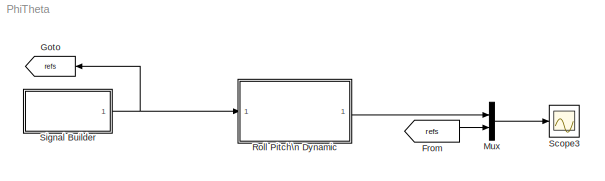
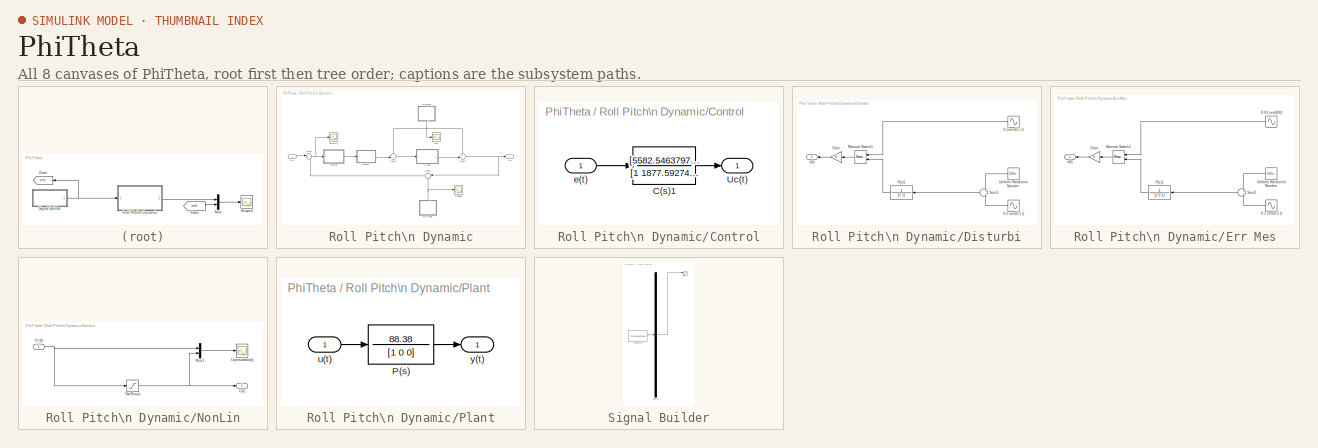
[diagram: thumbnail index - all 8 canvases of the model, root first then tree order]
MODEL PhiTheta
KIND model
BLOCK [From] From
  GotoTag = refs
  SID = 3
BLOCK [Goto] Goto
  GotoTag = refs
  SID = 4
BLOCK [Mux] Mux
  DisplayOption = bar
  Inputs = 2
  Ports = [2, 1]
  SID = 5
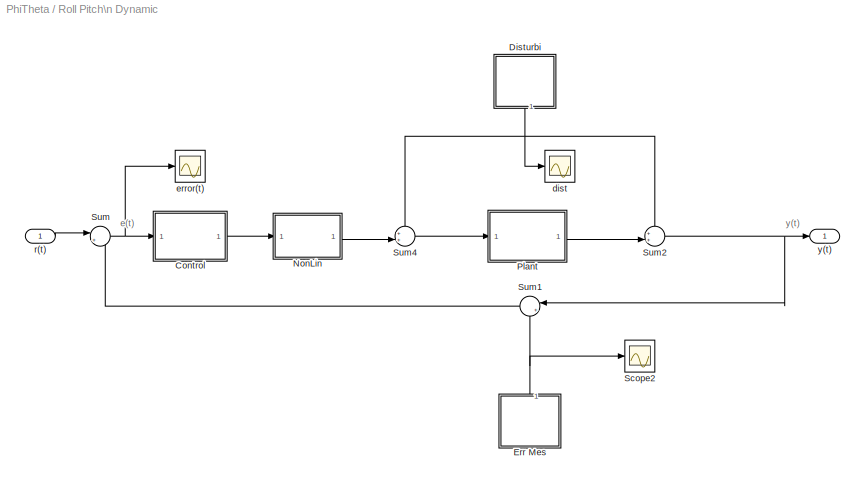
BLOCK [SubSystem] Roll Pitch\n Dynamic
  FunctionWithSeparateData = off
  MaskHideContents = off
  MinAlgLoopOccurrences = off
  Opaque = off
  Ports = [1, 1]
  PropExecContextOutsideSubsystem = off
  RTWSystemCode = Auto
  RequestExecContextInheritance = off
  SID = 58
BLOCK [SubSystem] Roll Pitch\n Dynamic/Control
  FunctionWithSeparateData = off
  MaskHideContents = off
  MinAlgLoopOccurrences = off
  Opaque = off
  Ports = [1, 1]
  PropExecContextOutsideSubsystem = off
  RTWSystemCode = Auto
  RequestExecContextInheritance = off
  SID = 52
BLOCK [TransferFcn] Roll Pitch\n Dynamic/Control/C(s)1
  Denominator = [1 1877.59274550691 0]
  Numerator = [5582.54637971166 77190.9890523944 0]
  SID = 23
BLOCK [Outport] Roll Pitch\n Dynamic/Control/Uc(t)
  IconDisplay = Port number
  SID = 54
BLOCK [Inport] Roll Pitch\n Dynamic/Control/e(t)
  IconDisplay = Port number
  SID = 53
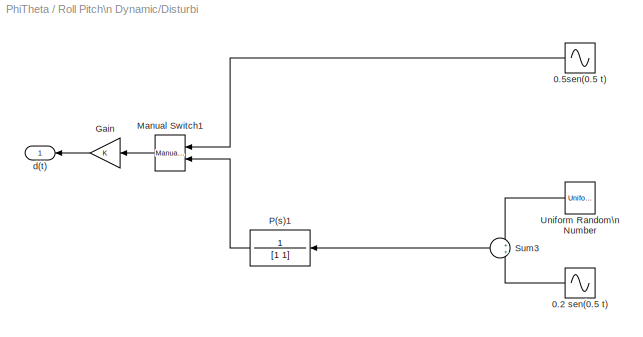
BLOCK [SubSystem] Roll Pitch\n Dynamic/Disturbi
  FunctionWithSeparateData = off
  MaskHideContents = off
  MinAlgLoopOccurrences = off
  Opaque = off
  Ports = [0, 1]
  PropExecContextOutsideSubsystem = off
  RTWSystemCode = Auto
  RequestExecContextInheritance = off
  SID = 43
BLOCK [Outport] Roll Pitch\n Dynamic/Disturbi/  d(t)
  IconDisplay = Port number
  SID = 44
BLOCK [Sin] Roll Pitch\n Dynamic/Disturbi/0.2 sen(0.5 t)
  Amplitude = 0.2
  Frequency = 0.4
  Phase = 1
  Ports = [0, 1]
  SID = 40
  SampleTime = 0
BLOCK [Sin] Roll Pitch\n Dynamic/Disturbi/0.5sen(0.5 t)
  Amplitude = 0.5
  Frequency = 0.5
  Phase = 1
  Ports = [0, 1]
  SID = 2
  SampleTime = 0
BLOCK [Gain] Roll Pitch\n Dynamic/Disturbi/Gain
  OutDataTypeStr = Inherit: Inherit via internal rule
  ParamDataTypeStr = Inherit: Inherit via internal rule
  SID = 61
  SaturateOnIntegerOverflow = off
BLOCK [Reference] Roll Pitch\n Dynamic/Disturbi/Manual Switch1  REF=simulink/Signal\nRouting/Manual Switch
  Ports = [2, 1]
  SID = 47
  SourceBlock = simulink/Signal\nRouting/Manual Switch
  SourceType = Manual Switch
  action = 0
  sw = 0
  varsize = off
BLOCK [TransferFcn] Roll Pitch\n Dynamic/Disturbi/P(s)1
  Denominator = [1 1]
  Numerator = 1
  SID = 38
BLOCK [Sum] Roll Pitch\n Dynamic/Disturbi/Sum3
  IconShape = round
  InputSameDT = off
  OutDataTypeStr = Inherit: Inherit via internal rule
  Ports = [2, 1]
  SID = 39
  SaturateOnIntegerOverflow = off
BLOCK [UniformRandomNumber] Roll Pitch\n Dynamic/Disturbi/Uniform Random\nNumber
  Maximum = 0.5
  Minimum = -0.5
  SID = 37
  SampleTime = 0.1
BLOCK [SubSystem] Roll Pitch\n Dynamic/Err Mes
  FunctionWithSeparateData = off
  MaskHideContents = off
  MinAlgLoopOccurrences = off
  Opaque = off
  Ports = [0, 1]
  PropExecContextOutsideSubsystem = off
  RTWSystemCode = Auto
  RequestExecContextInheritance = off
  SID = 62
BLOCK [Outport] Roll Pitch\n Dynamic/Err Mes/  d(t)
  IconDisplay = Port number
  SID = 70
BLOCK [Sin] Roll Pitch\n Dynamic/Err Mes/0.03 sen(80t)
  Amplitude = 0.003
  Frequency = 80
  Phase = 1
  Ports = [0, 1]
  SID = 19
  SampleTime = 0
BLOCK [Sin] Roll Pitch\n Dynamic/Err Mes/0.2 sen(0.5 t)
  Amplitude = 0.02
  Frequency = 50
  Phase = 1
  Ports = [0, 1]
  SID = 63
  SampleTime = 0
BLOCK [Gain] Roll Pitch\n Dynamic/Err Mes/Gain
  OutDataTypeStr = Inherit: Inherit via internal rule
  ParamDataTypeStr = Inherit: Inherit via internal rule
  SID = 65
  SaturateOnIntegerOverflow = off
BLOCK [Reference] Roll Pitch\n Dynamic/Err Mes/Manual Switch1  REF=simulink/Signal\nRouting/Manual Switch
  Ports = [2, 1]
  SID = 66
  SourceBlock = simulink/Signal\nRouting/Manual Switch
  SourceType = Manual Switch
  action = 0
  sw = 0
  varsize = off
BLOCK [TransferFcn] Roll Pitch\n Dynamic/Err Mes/P(s)1
  Denominator = [1 0.1]
  Numerator = 1
  SID = 67
BLOCK [Sum] Roll Pitch\n Dynamic/Err Mes/Sum3
  IconShape = round
  InputSameDT = off
  OutDataTypeStr = Inherit: Inherit via internal rule
  Ports = [2, 1]
  SID = 68
  SaturateOnIntegerOverflow = off
BLOCK [UniformRandomNumber] Roll Pitch\n Dynamic/Err Mes/Uniform Random\nNumber
  Maximum = 0.05
  Minimum = -0.05
  SID = 69
  SampleTime = 0.1
BLOCK [SubSystem] Roll Pitch\n Dynamic/NonLin
  FunctionWithSeparateData = off
  MaskHideContents = off
  MinAlgLoopOccurrences = off
  Opaque = off
  Ports = [1, 1]
  PropExecContextOutsideSubsystem = off
  RTWSystemCode = Auto
  RequestExecContextInheritance = off
  SID = 55
BLOCK [Mux] Roll Pitch\n Dynamic/NonLin/Mux1
  DisplayOption = bar
  Inputs = 2
  Ports = [2, 1]
  SID = 32
BLOCK [Saturate] Roll Pitch\n Dynamic/NonLin/SatThrust
  InputPortMap = u0
  LowerLimit = -6
  Ports = [1, 1]
  SID = 31
  UpperLimit = satThrust
BLOCK [Outport] Roll Pitch\n Dynamic/NonLin/U(t)
  IconDisplay = Port number
  SID = 57
BLOCK [Inport] Roll Pitch\n Dynamic/NonLin/Uc(t)
  IconDisplay = Port number
  SID = 56
BLOCK [Scope] Roll Pitch\n Dynamic/NonLin/Uperturbato(t)
  DataFormat = StructureWithTime
  Floating = off
  LimitDataPoints = off
  NumInputPorts = 1
  Ports = [1]
  SID = 25
  SampleTime = 0
  SaveName = ScopeData5
  ShowLegends = on
  TimeRange = 15
  YMax = 250000
  YMin = -150000
BLOCK [SubSystem] Roll Pitch\n Dynamic/Plant
  FunctionWithSeparateData = off
  MaskHideContents = off
  MinAlgLoopOccurrences = off
  Opaque = off
  Ports = [1, 1]
  PropExecContextOutsideSubsystem = off
  RTWSystemCode = Auto
  RequestExecContextInheritance = off
  SID = 49
BLOCK [TransferFcn] Roll Pitch\n Dynamic/Plant/P(s)
  Denominator = [1 0 0]
  Numerator = 88.38
  SID = 7
BLOCK [Inport] Roll Pitch\n Dynamic/Plant/u(t)
  IconDisplay = Port number
  SID = 50
BLOCK [Outport] Roll Pitch\n Dynamic/Plant/y(t)
  IconDisplay = Port number
  SID = 51
BLOCK [Scope] Roll Pitch\n Dynamic/Scope2
  DataFormat = StructureWithTime
  Floating = off
  LimitDataPoints = off
  NumInputPorts = 1
  Ports = [1]
  SID = 9
  SampleTime = 0
  SaveName = ScopeData2
  ShowLegends = off
BLOCK [Sum] Roll Pitch\n Dynamic/Sum
  IconShape = round
  InputSameDT = off
  Inputs = |+-
  OutDataTypeStr = Inherit: Inherit via internal rule
  Ports = [2, 1]
  SID = 12
  SaturateOnIntegerOverflow = off
BLOCK [Sum] Roll Pitch\n Dynamic/Sum1
  IconShape = round
  InputSameDT = off
  Inputs = |++
  OutDataTypeStr = Inherit: Inherit via internal rule
  Ports = [2, 1]
  SID = 13
  SaturateOnIntegerOverflow = off
BLOCK [Sum] Roll Pitch\n Dynamic/Sum2
  IconShape = round
  InputSameDT = off
  Inputs = ++|
  OutDataTypeStr = Inherit: Inherit via internal rule
  Ports = [2, 1]
  SID = 14
  SaturateOnIntegerOverflow = off
BLOCK [Sum] Roll Pitch\n Dynamic/Sum4
  IconShape = round
  InputSameDT = off
  Inputs = ++|
  OutDataTypeStr = Inherit: Inherit via internal rule
  Ports = [2, 1]
  SID = 42
  SaturateOnIntegerOverflow = off
BLOCK [Scope] Roll Pitch\n Dynamic/dist
  DataFormat = StructureWithTime
  Floating = off
  LimitDataPoints = off
  NumInputPorts = 1
  Ports = [1]
  SID = 8
  SampleTime = 0
  SaveName = ScopeData1
  ShowLegends = off
BLOCK [Scope] Roll Pitch\n Dynamic/error(t)
  DataFormat = StructureWithTime
  Floating = off
  NumInputPorts = 1
  Ports = [1]
  SID = 24
  SampleTime = 0
  SaveName = ScopeData4
  ShowLegends = off
BLOCK [Inport] Roll Pitch\n Dynamic/r(t)
  IconDisplay = Port number
  SID = 59
BLOCK [Outport] Roll Pitch\n Dynamic/y(t)
  IconDisplay = Port number
  SID = 60
BLOCK [Scope] Scope3
  DataFormat = StructureWithTime
  Floating = off
  LimitDataPoints = off
  NumInputPorts = 1
  Ports = [1]
  SID = 10
  SampleTime = 0
  ShowLegends = off
  ZoomMode = xonly
BLOCK [SubSystem] Signal Builder
  ClipboardFcn = sigbuilder_block('clipboard');
  CloseFcn = sigbuilder_block('close');
  ContinueFcn = sigbuilder_block('continue');
  CopyFcn = sigbuilder_block('copy');
  DeleteFcn = sigbuilder_block('delete');
  FunctionWithSeparateData = off
  LoadFcn = sigbuilder_block('load');
  MaskCapabilities = slmaskedcaps(gcbh)
  MaskDescription = Simulink:masks:SigbuilderBlock_MD
  MaskDisplay = plot(0, 0, 100, 100,[2, 2, 32, 32, 2], [68, 8, 8, 68, 68],[32, 2], [38, 38], [32, 19, 2],[53, 60, 44], [32, 17, 17, 2],[16, 16, 31, 31]);txt = getActiveGroup(gcbh);text(2, 100, txt,'verticalAlignment', 'top');
  MaskHideContents = on
  MaskIconFrame = on
  MaskIconOpaque = off
  MaskIconRotate = port
  MaskIconUnits = autoscale
  MaskInitialization = if ~strcmp(get_param(bdroot(gcbh),'SimulationStatus'),'stopped') tuvar = sigbuilder_block('maskInit'); end
  MaskPortRotate = default
  MaskSelfModifiable = on
  MaskType = Sigbuilder block
  MinAlgLoopOccurrences = off
  ModelCloseFcn = sigbuilder_block('modelClose');
  NameChangeFcn = sigbuilder_block('namechange');
  Opaque = off
  OpenFcn = sigbuilder_block('open',[349.6 120.8 550.4 400 ]);
  PauseFcn = sigbuilder_block('pause');
  Ports = [0, 1]
  PreSaveFcn = sigbuilder_block('preSave');
  PropExecContextOutsideSubsystem = off
  RTWSystemCode = Auto
  RequestExecContextInheritance = off
  SID = 11
  StartFcn = sigbuilder_block('start');
  StopFcn = sigbuilder_block('stop');
  Tag = STV Subsys
BLOCK [Demux] Signal Builder/Demux
  Outputs = 1
  Ports = [1, 1]
  SID = 11:1
  Tag = STV Demux
BLOCK [FromWorkspace] Signal Builder/FromWs
  SID = 11:2
  SampleTime = 0
  SigBuilderData = DataTag0
  Tag = STV FromWs
  VariableName = tuvar
  VnvData = DataTag1
  ZeroCross = on
BLOCK [Outport] Signal Builder/Signal 1
  IconDisplay = Port number
  SID = 11:3
  Tag = STV Outport
ANNOTATION Roll Pitch\n Dynamic: e(t)
ANNOTATION Roll Pitch\n Dynamic: y(t)
LINE From:1 -> Mux:2
LINE Mux:1 -> Scope3:1
LINE Roll Pitch\n Dynamic/Control/C(s)1:1 -> Roll Pitch\n Dynamic/Control/Uc(t):1
LINE Roll Pitch\n Dynamic/Control/e(t):1 -> Roll Pitch\n Dynamic/Control/C(s)1:1
LINE Roll Pitch\n Dynamic/Control:1 -> Roll Pitch\n Dynamic/NonLin:1
LINE Roll Pitch\n Dynamic/Disturbi/0.2 sen(0.5 t):1 -> Roll Pitch\n Dynamic/Disturbi/Sum3:2
LINE Roll Pitch\n Dynamic/Disturbi/0.5sen(0.5 t):1 -> Roll Pitch\n Dynamic/Disturbi/Manual Switch1:1
LINE Roll Pitch\n Dynamic/Disturbi/Gain:1 -> Roll Pitch\n Dynamic/Disturbi/  d(t):1
LINE Roll Pitch\n Dynamic/Disturbi/Manual Switch1:1 -> Roll Pitch\n Dynamic/Disturbi/Gain:1
LINE Roll Pitch\n Dynamic/Disturbi/P(s)1:1 -> Roll Pitch\n Dynamic/Disturbi/Manual Switch1:2
LINE Roll Pitch\n Dynamic/Disturbi/Sum3:1 -> Roll Pitch\n Dynamic/Disturbi/P(s)1:1
LINE Roll Pitch\n Dynamic/Disturbi/Uniform Random\nNumber:1 -> Roll Pitch\n Dynamic/Disturbi/Sum3:1
NET Roll Pitch\n Dynamic/Disturbi:1 -> Roll Pitch\n Dynamic/Sum2:1, Roll Pitch\n Dynamic/Sum4:1, Roll Pitch\n Dynamic/dist:1
LINE Roll Pitch\n Dynamic/Err Mes/0.03 sen(80t):1 -> Roll Pitch\n Dynamic/Err Mes/Manual Switch1:1
LINE Roll Pitch\n Dynamic/Err Mes/0.2 sen(0.5 t):1 -> Roll Pitch\n Dynamic/Err Mes/Sum3:2
LINE Roll Pitch\n Dynamic/Err Mes/Gain:1 -> Roll Pitch\n Dynamic/Err Mes/  d(t):1
LINE Roll Pitch\n Dynamic/Err Mes/Manual Switch1:1 -> Roll Pitch\n Dynamic/Err Mes/Gain:1
LINE Roll Pitch\n Dynamic/Err Mes/P(s)1:1 -> Roll Pitch\n Dynamic/Err Mes/Manual Switch1:2
LINE Roll Pitch\n Dynamic/Err Mes/Sum3:1 -> Roll Pitch\n Dynamic/Err Mes/P(s)1:1
LINE Roll Pitch\n Dynamic/Err Mes/Uniform Random\nNumber:1 -> Roll Pitch\n Dynamic/Err Mes/Sum3:1
NET Roll Pitch\n Dynamic/Err Mes:1 -> Roll Pitch\n Dynamic/Scope2:1, Roll Pitch\n Dynamic/Sum1:2
LINE Roll Pitch\n Dynamic/NonLin/Mux1:1 -> Roll Pitch\n Dynamic/NonLin/Uperturbato(t):1
NET Roll Pitch\n Dynamic/NonLin/SatThrust:1 -> Roll Pitch\n Dynamic/NonLin/Mux1:2, Roll Pitch\n Dynamic/NonLin/U(t):1
NET Roll Pitch\n Dynamic/NonLin/Uc(t):1 -> Roll Pitch\n Dynamic/NonLin/Mux1:1, Roll Pitch\n Dynamic/NonLin/SatThrust:1
LINE Roll Pitch\n Dynamic/NonLin:1 -> Roll Pitch\n Dynamic/Sum4:2
LINE Roll Pitch\n Dynamic/Plant/P(s):1 -> Roll Pitch\n Dynamic/Plant/y(t):1
LINE Roll Pitch\n Dynamic/Plant/u(t):1 -> Roll Pitch\n Dynamic/Plant/P(s):1
LINE Roll Pitch\n Dynamic/Plant:1 -> Roll Pitch\n Dynamic/Sum2:2
LINE Roll Pitch\n Dynamic/Sum1:1 -> Roll Pitch\n Dynamic/Sum:2
NET Roll Pitch\n Dynamic/Sum2:1 -> Roll Pitch\n Dynamic/Sum1:1, Roll Pitch\n Dynamic/y(t):1
LINE Roll Pitch\n Dynamic/Sum4:1 -> Roll Pitch\n Dynamic/Plant:1
NET Roll Pitch\n Dynamic/Sum:1 -> Roll Pitch\n Dynamic/Control:1, Roll Pitch\n Dynamic/error(t):1
LINE Roll Pitch\n Dynamic/r(t):1 -> Roll Pitch\n Dynamic/Sum:1
LINE Roll Pitch\n Dynamic:1 -> Mux:1
LINE Signal Builder/Demux:1 -> Signal Builder/Signal 1:1
LINE Signal Builder/FromWs:1 -> Signal Builder/Demux:1
NET Signal Builder:1 -> Goto:1, Roll Pitch\n Dynamic:1
note: NET lines group one-source signal fan-out (src -> all destinations, sorted); 1:1 wires keep LINE
